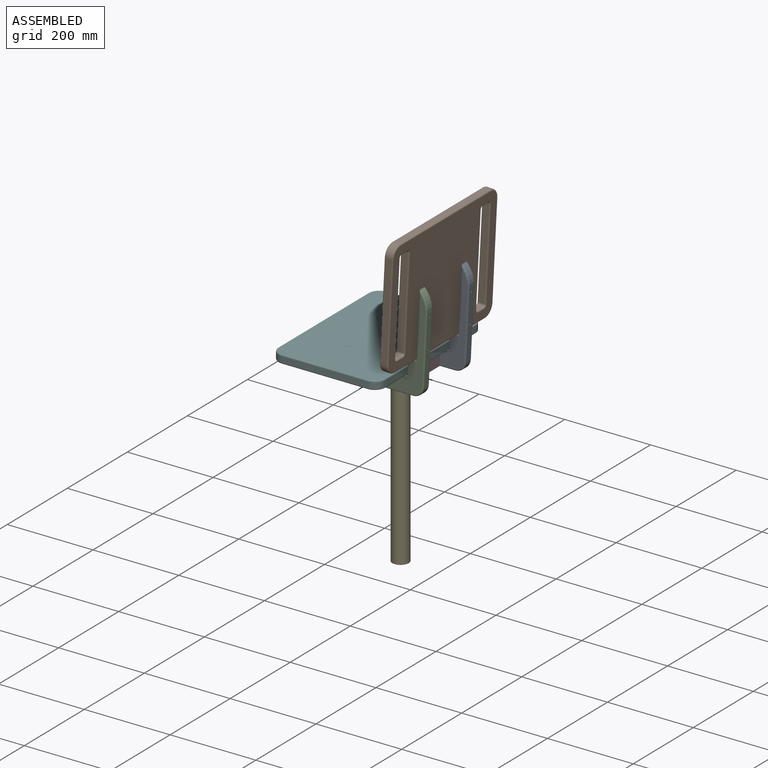
[diagram: assembled view]
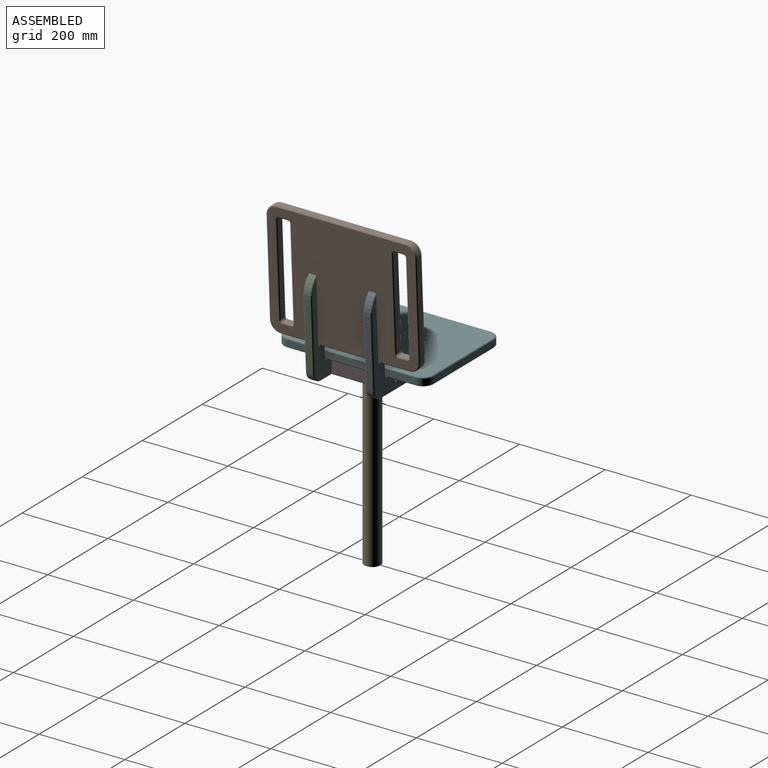
[diagram: assembled view, second angle]
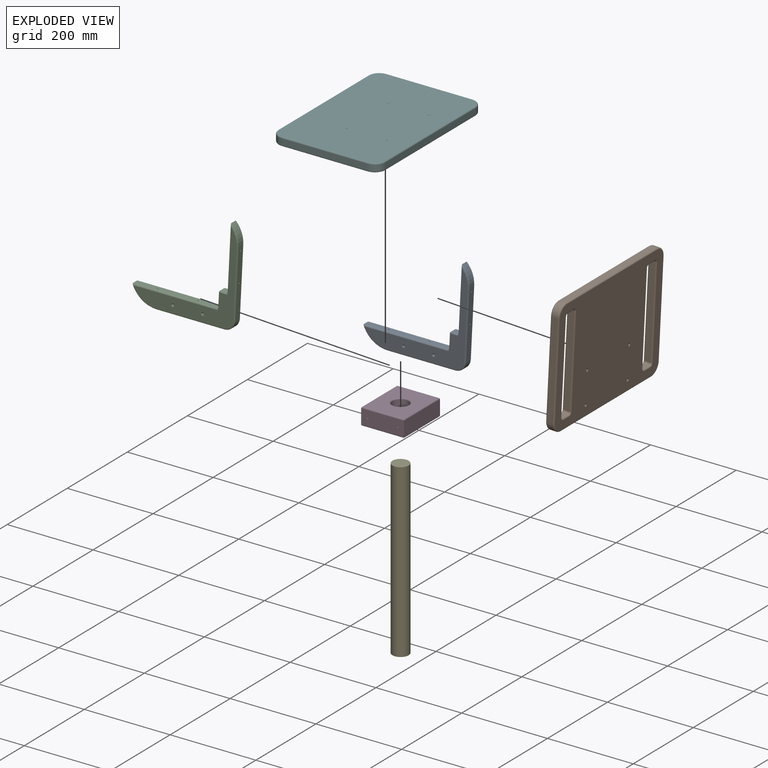
[diagram: exploded view]
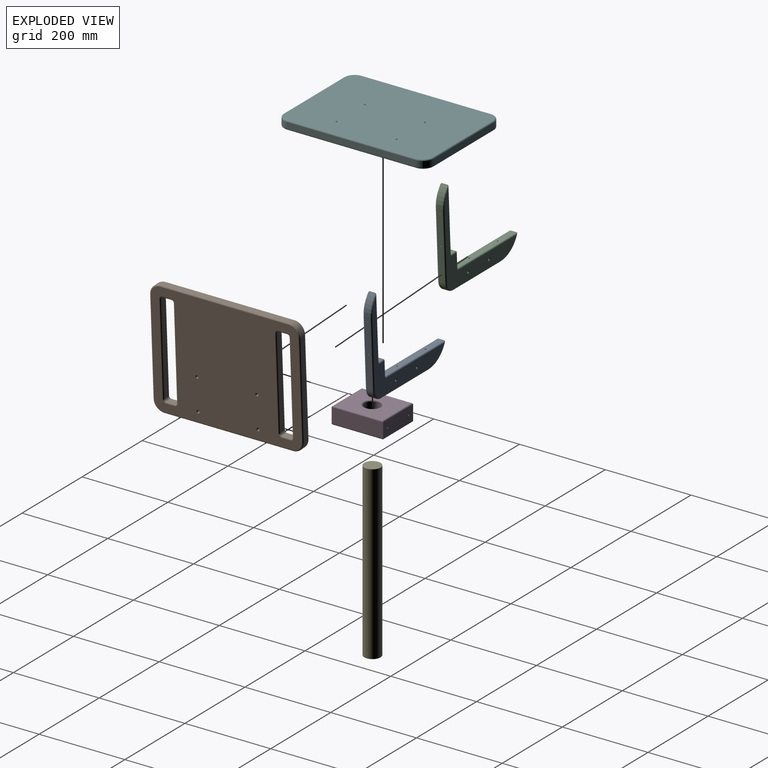
[diagram: exploded view, second angle]
ASSEMBLY  parts=6 mates=5
PART A: 48 faces, bbox 256.9x20x236.1 mm
  f0: cylinder r=60mm len=56.57mm, axis (0,1,0), area 1026.9mm2, adj f1,f11,f28,f42,f47
  f1: plane 157.69x14mm, normal (0,0,-1), area 2200.6mm2, adj f0,f2,f26,f40,f46
  f2: cylinder r=25mm len=24.97mm, axis (0,1,0), area 532.1mm2, adj f1,f3,f24,f38
  f3: plane 158.22x14mm, normal (1,0,-0.05), area 2203.8mm2, adj f2,f4,f22,f36,f44,f45
  f4: cylinder r=60mm len=45.67mm, axis (0,1,0), area 706.5mm2, adj f3,f5,f20,f34
  f5: plane 146.81x14mm, normal (-1,0,0.05), area 2043.9mm2, adj f4,f6,f18,f32,f44,f45
  f6: cylinder r=3mm len=14mm, axis (0,1,0), area 66mm2, adj f5,f7,f17,f31
  f7: plane 14x13.98mm, normal (0.05,0,1), area 196mm2, adj f6,f8,f19,f33
  f8: cylinder r=3mm len=14mm, axis (0,1,0), area 66mm2, adj f7,f9,f21,f35
  f9: plane 32.99x14mm, normal (-1,0,0.05), area 462.4mm2, adj f8,f10,f23,f37
  f10: cylinder r=3mm len=14mm, axis (0,1,0), area 63.9mm2, adj f9,f11,f25,f39
  f11: plane 197.15x14mm, normal (0,0,1), area 2745.9mm2, adj f0,f10,f27,f41,f46,f47
  f12: cylinder r=1.5mm len=14mm, axis (0,1,0), area 131.9mm2, adj f16,f30
  f13: cylinder r=1.5mm len=14mm, axis (0,1,0), area 131.9mm2, adj f29,f43
  f14: plane 239.88x217.19mm, normal (0,-1,0), area 10336.9mm2, adj f30,f31,f32,f33,f34,f36,f37,f38
  f15: plane 239.88x217.19mm, normal (0,1,0), area 10336.9mm2, adj f16,f17,f18,f19,f20,f22,f23,f24
  f16: torus R=4.5mm, axis (0,-1,0), area 76.7mm2, adj f12,f15
  f17: torus R=6mm, axis (0,-1,0), area 30.3mm2, adj f6,f15,f18,f19
  f18: cylinder r=3mm len=146.96mm, axis (-0.05,0,-1), area 680.6mm2, adj f5,f15,f17,f20
  f19: cylinder r=3mm len=14.13mm, axis (-1,0,0.05), area 66mm2, adj f7,f15,f17,f21
  f20: torus R=57mm, axis (0,-1,0), area 221.6mm2, adj f4,f15,f18,f22
  f21: sphere r=3mm, area 14.1mm2, adj f8,f19,f23
  f22: cylinder r=3mm len=158.37mm, axis (0.05,0,1), area 746.6mm2, adj f3,f15,f20,f24
  f23: cylinder r=3mm len=33.14mm, axis (-0.05,0,-1), area 155.7mm2, adj f9,f15,f21,f25
  f24: torus R=22mm, axis (0,-1,0), area 171.3mm2, adj f2,f15,f22,f26
  f25: torus R=6mm, axis (0,-1,0), area 29.3mm2, adj f10,f15,f23,f27
  f26: cylinder r=3mm len=157.69mm, axis (1,0,0), area 743.1mm2, adj f1,f15,f24,f28
  f27: cylinder r=3mm len=197.15mm, axis (-1,0,0), area 921.6mm2, adj f11,f15,f25,f28
  f28: torus R=57mm, axis (0,-1,0), area 334.4mm2, adj f0,f15,f26,f27
  f29: torus R=4.5mm, axis (0,-1,0), area 76.7mm2, adj f13,f15
  f30: torus R=4.5mm, axis (0,-1,0), area 76.7mm2, adj f12,f14
  f31: torus R=6mm, axis (0,-1,0), area 30.3mm2, adj f6,f14,f32,f33
  f32: cylinder r=3mm len=146.96mm, axis (0.05,0,1), area 680.6mm2, adj f5,f14,f31,f34
  f33: cylinder r=3mm len=14.13mm, axis (1,0,-0.05), area 66mm2, adj f7,f14,f31,f35
  f34: torus R=57mm, axis (0,-1,0), area 221.6mm2, adj f4,f14,f32,f36
  f35: sphere r=3mm, area 14.1mm2, adj f8,f33,f37
  f36: cylinder r=3mm len=158.37mm, axis (-0.05,0,-1), area 746.6mm2, adj f3,f14,f34,f38
  f37: cylinder r=3mm len=33.14mm, axis (0.05,0,1), area 155.7mm2, adj f9,f14,f35,f39
  f38: torus R=22mm, axis (0,-1,0), area 171.3mm2, adj f2,f14,f36,f40
  f39: torus R=6mm, axis (0,-1,0), area 29.3mm2, adj f10,f14,f37,f41
  f40: cylinder r=3mm len=157.69mm, axis (-1,0,0), area 743.1mm2, adj f1,f14,f38,f42
  f41: cylinder r=3mm len=197.15mm, axis (1,0,0), area 921.6mm2, adj f11,f14,f39,f42
  f42: torus R=57mm, axis (0,-1,0), area 334.4mm2, adj f0,f14,f40,f41
  f43: torus R=4.5mm, axis (0,-1,0), area 76.7mm2, adj f13,f14
  f44: cylinder r=1.5mm len=20.13mm, axis (-1,0,0.05), area 188.5mm2, adj f3,f5
  f45: cylinder r=1.5mm len=20.13mm, axis (-1,0,0.05), area 188.5mm2, adj f3,f5
  f46: cylinder r=1.5mm len=40mm, axis (0,0,1), area 377mm2, adj f1,f11
  f47: cylinder r=1.5mm len=39.98mm, axis (0,0,1), area 376.2mm2, adj f0,f11
PART B: 86 faces, bbox 354.1x20x279.1 mm
  f0: cylinder r=5mm len=14mm, axis (0,1,0), area 110mm2, adj f1,f21,f38,f66
  f1: plane 20x14mm, normal (0,0,1), area 280mm2, adj f0,f2,f36,f64
  f2: cylinder r=5mm len=14mm, axis (0,1,0), area 110mm2, adj f1,f3,f34,f62
  f3: plane 215x14mm, normal (1,0,0), area 3010mm2, adj f2,f4,f32,f60
  f4: cylinder r=5mm len=14mm, axis (0,1,0), area 110mm2, adj f3,f5,f33,f61
  f5: plane 20x14mm, normal (0,0,-1), area 280mm2, adj f4,f6,f35,f63
  f6: cylinder r=5mm len=14mm, axis (0,1,0), area 110mm2, adj f5,f21,f37,f65
  f7: plane 20x14mm, normal (0,0,1), area 280mm2, adj f8,f22,f45,f73
  f8: cylinder r=5mm len=14mm, axis (0,1,0), area 110mm2, adj f7,f9,f43,f71
  f9: plane 215x14mm, normal (1,0,0), area 3010mm2, adj f8,f10,f41,f69
  f10: cylinder r=5mm len=14mm, axis (0,1,0), area 110mm2, adj f9,f11,f40,f68
  f11: plane 20x14mm, normal (0,0,-1), area 280mm2, adj f10,f12,f42,f70
  f12: cylinder r=5mm len=14mm, axis (0,1,0), area 110mm2, adj f11,f13,f44,f72
  f13: plane 215x14mm, normal (-1,0,0), area 3010mm2, adj f12,f22,f46,f74
  f14: plane 300x14mm, normal (0,0,-1), area 4200mm2, adj f15,f24,f55,f83
  f15: cylinder r=25mm len=25mm, axis (0,1,0), area 549.8mm2, adj f14,f16,f53,f81
  f16: plane 225x14mm, normal (1,0,0), area 3150mm2, adj f15,f17,f51,f79
  f17: cylinder r=25mm len=25mm, axis (0,1,0), area 549.8mm2, adj f16,f18,f49,f77
  f18: plane 300x14mm, normal (0,0,1), area 4200mm2, adj f17,f19,f50,f78
  f19: cylinder r=25mm len=25mm, axis (0,1,0), area 549.8mm2, adj f18,f20,f52,f80
  f20: plane 225x14mm, normal (-1,0,0), area 3150mm2, adj f19,f24,f54,f82
  f21: plane 215x14mm, normal (-1,0,0), area 3010mm2, adj f0,f6,f39,f67
  f22: cylinder r=5mm len=14mm, axis (0,1,0), area 110mm2, adj f7,f13,f47,f75
  f23: cylinder r=1.5mm len=14mm, axis (0,1,0), area 131.9mm2, adj f48,f76
  f24: cylinder r=25mm len=25mm, axis (0,1,0), area 549.8mm2, adj f14,f20,f56,f84
  f25: cylinder r=1.5mm len=14mm, axis (0,1,0), area 131.9mm2, adj f31,f59
  f26: cylinder r=1.5mm len=14mm, axis (0,1,0), area 131.9mm2, adj f30,f58
  f27: cylinder r=1.5mm len=14mm, axis (0,1,0), area 131.9mm2, adj f57,f85
  f28: plane 344x269mm, normal (0,-1,0), area 75343.9mm2, adj f58,f59,f60,f61,f62,f63,f64,f65
  f29: plane 344x269mm, normal (0,1,0), area 75343.9mm2, adj f30,f31,f32,f33,f34,f35,f36,f37
  f30: torus R=4.5mm, axis (0,-1,0), area 76.7mm2, adj f26,f29
  f31: torus R=4.5mm, axis (0,-1,0), area 76.7mm2, adj f25,f29
  f32: cylinder r=3mm len=215mm, axis (0,0,1), area 1013.2mm2, adj f3,f29,f33,f34
  f33: torus R=8mm, axis (0,-1,0), area 45.1mm2, adj f4,f29,f32,f35
  f34: torus R=8mm, axis (0,-1,0), area 45.1mm2, adj f2,f29,f32,f36
  f35: cylinder r=3mm len=20mm, axis (1,0,0), area 94.2mm2, adj f5,f29,f33,f37
  f36: cylinder r=3mm len=20mm, axis (-1,0,0), area 94.2mm2, adj f1,f29,f34,f38
  f37: torus R=8mm, axis (0,-1,0), area 45.1mm2, adj f6,f29,f35,f39
  f38: torus R=8mm, axis (0,-1,0), area 45.1mm2, adj f0,f29,f36,f39
  f39: cylinder r=3mm len=215mm, axis (0,0,-1), area 1013.2mm2, adj f21,f29,f37,f38
  f40: torus R=8mm, axis (0,-1,0), area 45.1mm2, adj f10,f29,f41,f42
  f41: cylinder r=3mm len=215mm, axis (0,0,1), area 1013.2mm2, adj f9,f29,f40,f43
  f42: cylinder r=3mm len=20mm, axis (1,0,0), area 94.2mm2, adj f11,f29,f40,f44
  f43: torus R=8mm, axis (0,-1,0), area 45.1mm2, adj f8,f29,f41,f45
  f44: torus R=8mm, axis (0,-1,0), area 45.1mm2, adj f12,f29,f42,f46
  f45: cylinder r=3mm len=20mm, axis (-1,0,0), area 94.2mm2, adj f7,f29,f43,f47
  f46: cylinder r=3mm len=215mm, axis (0,0,-1), area 1013.2mm2, adj f13,f29,f44,f47
  f47: torus R=8mm, axis (0,-1,0), area 45.1mm2, adj f22,f29,f45,f46
  f48: torus R=4.5mm, axis (0,-1,0), area 76.7mm2, adj f23,f29
  f49: torus R=22mm, axis (0,-1,0), area 177mm2, adj f17,f29,f50,f51
  f50: cylinder r=3mm len=300mm, axis (-1,0,0), area 1413.7mm2, adj f18,f29,f49,f52
  f51: cylinder r=3mm len=225mm, axis (0,0,1), area 1060.3mm2, adj f16,f29,f49,f53
  f52: torus R=22mm, axis (0,-1,0), area 177mm2, adj f19,f29,f50,f54
  f53: torus R=22mm, axis (0,-1,0), area 177mm2, adj f15,f29,f51,f55
  f54: cylinder r=3mm len=225mm, axis (0,0,-1), area 1060.3mm2, adj f20,f29,f52,f56
  f55: cylinder r=3mm len=300mm, axis (1,0,0), area 1413.7mm2, adj f14,f29,f53,f56
  f56: torus R=22mm, axis (0,-1,0), area 177mm2, adj f24,f29,f54,f55
  f57: torus R=4.5mm, axis (0,-1,0), area 76.7mm2, adj f27,f29
  f58: torus R=4.5mm, axis (0,-1,0), area 76.7mm2, adj f26,f28
  f59: torus R=4.5mm, axis (0,-1,0), area 76.7mm2, adj f25,f28
  f60: cylinder r=3mm len=215mm, axis (0,0,-1), area 1013.2mm2, adj f3,f28,f61,f62
  f61: torus R=8mm, axis (0,-1,0), area 45.1mm2, adj f4,f28,f60,f63
  f62: torus R=8mm, axis (0,-1,0), area 45.1mm2, adj f2,f28,f60,f64
  f63: cylinder r=3mm len=20mm, axis (-1,0,0), area 94.2mm2, adj f5,f28,f61,f65
  f64: cylinder r=3mm len=20mm, axis (1,0,0), area 94.2mm2, adj f1,f28,f62,f66
  f65: torus R=8mm, axis (0,-1,0), area 45.1mm2, adj f6,f28,f63,f67
  f66: torus R=8mm, axis (0,-1,0), area 45.1mm2, adj f0,f28,f64,f67
  f67: cylinder r=3mm len=215mm, axis (0,0,1), area 1013.2mm2, adj f21,f28,f65,f66
  f68: torus R=8mm, axis (0,-1,0), area 45.1mm2, adj f10,f28,f69,f70
  f69: cylinder r=3mm len=215mm, axis (0,0,-1), area 1013.2mm2, adj f9,f28,f68,f71
  f70: cylinder r=3mm len=20mm, axis (-1,0,0), area 94.2mm2, adj f11,f28,f68,f72
  f71: torus R=8mm, axis (0,-1,0), area 45.1mm2, adj f8,f28,f69,f73
  f72: torus R=8mm, axis (0,-1,0), area 45.1mm2, adj f12,f28,f70,f74
  f73: cylinder r=3mm len=20mm, axis (1,0,0), area 94.2mm2, adj f7,f28,f71,f75
  f74: cylinder r=3mm len=215mm, axis (0,0,1), area 1013.2mm2, adj f13,f28,f72,f75
  f75: torus R=8mm, axis (0,-1,0), area 45.1mm2, adj f22,f28,f73,f74
  f76: torus R=4.5mm, axis (0,-1,0), area 76.7mm2, adj f23,f28
  f77: torus R=22mm, axis (0,-1,0), area 177mm2, adj f17,f28,f78,f79
  f78: cylinder r=3mm len=300mm, axis (1,0,0), area 1413.7mm2, adj f18,f28,f77,f80
  f79: cylinder r=3mm len=225mm, axis (0,0,-1), area 1060.3mm2, adj f16,f28,f77,f81
  f80: torus R=22mm, axis (0,-1,0), area 177mm2, adj f19,f28,f78,f82
  f81: torus R=22mm, axis (0,-1,0), area 177mm2, adj f15,f28,f79,f83
  f82: cylinder r=3mm len=225mm, axis (0,0,1), area 1060.3mm2, adj f20,f28,f80,f84
  f83: cylinder r=3mm len=300mm, axis (-1,0,0), area 1413.7mm2, adj f14,f28,f81,f84
  f84: torus R=22mm, axis (0,-1,0), area 177mm2, adj f24,f28,f82,f83
  f85: torus R=4.5mm, axis (0,-1,0), area 76.7mm2, adj f27,f28
PART C: same geometry as A
PART D: 25 faces, bbox 120x100x40 mm
  f0: plane 100x34mm, normal (-1,0,0), area 3385.9mm2, adj f1,f4,f8,f13,f17,f19
  f1: plane 120x34mm, normal (0,-1,0), area 4080mm2, adj f0,f2,f10,f15
  f2: plane 100x34mm, normal (1,0,0), area 3385.9mm2, adj f1,f4,f11,f16,f21,f23
  f3: cylinder r=19mm len=38mm, axis (0,0,-1), area 4058.9mm2, adj f7,f12
  f4: plane 120x34mm, normal (0,1,0), area 4080mm2, adj f0,f2,f9,f14
  f5: plane 114x94mm, normal (0,0,1), area 9195.5mm2, adj f12,f13,f14,f15,f16
  f6: plane 114x94mm, normal (0,0,-1), area 9195.5mm2, adj f7,f8,f9,f10,f11
  f7: torus R=22mm, axis (0,0,1), area 594.8mm2, adj f3,f6
  f8: cylinder r=3mm len=100mm, axis (0,-1,0), area 461mm2, adj f0,f6,f9,f10
  f9: cylinder r=3mm len=120mm, axis (-1,0,0), area 555.2mm2, adj f4,f6,f8,f11
  f10: cylinder r=3mm len=120mm, axis (1,0,0), area 555.2mm2, adj f1,f6,f8,f11
  f11: cylinder r=3mm len=100mm, axis (0,1,0), area 461mm2, adj f2,f6,f9,f10
  f12: torus R=22mm, axis (0,0,1), area 594.8mm2, adj f3,f5
  f13: cylinder r=3mm len=100mm, axis (0,1,0), area 461mm2, adj f0,f5,f14,f15
  f14: cylinder r=3mm len=120mm, axis (1,0,0), area 555.2mm2, adj f4,f5,f13,f16
  f15: cylinder r=3mm len=120mm, axis (-1,0,0), area 555.2mm2, adj f1,f5,f13,f16
  f16: cylinder r=3mm len=100mm, axis (0,-1,0), area 461mm2, adj f2,f5,f14,f15
  f17: cylinder r=1.5mm len=40mm, axis (-1,0,0), area 377mm2, adj f0,f18
  f18: cone r=0mm half-angle=59deg, axis (-1,0,0), area 8.2mm2, adj f17
  f19: cylinder r=1.5mm len=40mm, axis (-1,0,0), area 377mm2, adj f0,f20
  f20: cone r=0mm half-angle=59deg, axis (-1,0,0), area 8.2mm2, adj f19
  f21: cylinder r=1.5mm len=40mm, axis (1,0,0), area 377mm2, adj f2,f22
  f22: cone r=0mm half-angle=59deg, axis (1,0,0), area 8.2mm2, adj f21
  f23: cylinder r=1.5mm len=40mm, axis (1,0,0), area 377mm2, adj f2,f24
  f24: cone r=0mm half-angle=59deg, axis (1,0,0), area 8.2mm2, adj f23
PART E: 3 faces, bbox 38x400x38 mm
  f0: cylinder r=19mm len=400mm, axis (0,1,0), area 47752.2mm2, adj f1,f2
  f1: plane 38x38mm, normal (0,-1,0), area 1134.1mm2, adj f0
  f2: plane 38x38mm, normal (0,1,0), area 1134.1mm2, adj f0
PART F: 38 faces, bbox 354.1x20x254.1 mm
  f0: plane 300x14mm, normal (0,0,1), area 4200mm2, adj f1,f7,f22,f34
  f1: cylinder r=25mm len=25mm, axis (0,1,0), area 549.8mm2, adj f0,f2,f20,f32
  f2: plane 200x14mm, normal (-1,0,0), area 2800mm2, adj f1,f3,f18,f30
  f3: cylinder r=25mm len=25mm, axis (0,1,0), area 549.8mm2, adj f2,f4,f17,f29
  f4: plane 300x14mm, normal (0,0,-1), area 4200mm2, adj f3,f5,f19,f31
  f5: cylinder r=25mm len=25mm, axis (0,1,0), area 549.8mm2, adj f4,f6,f21,f33
  f6: plane 200x14mm, normal (1,0,0), area 2800mm2, adj f5,f7,f23,f35
  f7: cylinder r=25mm len=25mm, axis (0,1,0), area 549.8mm2, adj f0,f6,f24,f36
  f8: cylinder r=1.5mm len=14mm, axis (0,1,0), area 131.9mm2, adj f16,f28
  f9: cylinder r=1.5mm len=14mm, axis (0,1,0), area 131.9mm2, adj f15,f27
  f10: cylinder r=1.5mm len=14mm, axis (0,1,0), area 131.9mm2, adj f14,f26
  f11: cylinder r=1.5mm len=14mm, axis (0,1,0), area 131.9mm2, adj f25,f37
  f12: plane 344x244mm, normal (0,-1,0), area 83266.1mm2, adj f26,f27,f28,f29,f30,f31,f32,f33
  f13: plane 344x244mm, normal (0,1,0), area 83266.1mm2, adj f14,f15,f16,f17,f18,f19,f20,f21
  f14: torus R=4.5mm, axis (0,-1,0), area 76.7mm2, adj f10,f13
  f15: torus R=4.5mm, axis (0,-1,0), area 76.7mm2, adj f9,f13
  f16: torus R=4.5mm, axis (0,-1,0), area 76.7mm2, adj f8,f13
  f17: torus R=22mm, axis (0,-1,0), area 177mm2, adj f3,f13,f18,f19
  f18: cylinder r=3mm len=200mm, axis (0,0,-1), area 942.5mm2, adj f2,f13,f17,f20
  f19: cylinder r=3mm len=300mm, axis (1,0,0), area 1413.7mm2, adj f4,f13,f17,f21
  f20: torus R=22mm, axis (0,-1,0), area 177mm2, adj f1,f13,f18,f22
  f21: torus R=22mm, axis (0,-1,0), area 177mm2, adj f5,f13,f19,f23
  f22: cylinder r=3mm len=300mm, axis (-1,0,0), area 1413.7mm2, adj f0,f13,f20,f24
  f23: cylinder r=3mm len=200mm, axis (0,0,1), area 942.5mm2, adj f6,f13,f21,f24
  f24: torus R=22mm, axis (0,-1,0), area 177mm2, adj f7,f13,f22,f23
  f25: torus R=4.5mm, axis (0,-1,0), area 76.7mm2, adj f11,f13
  f26: torus R=4.5mm, axis (0,-1,0), area 76.7mm2, adj f10,f12
  f27: torus R=4.5mm, axis (0,-1,0), area 76.7mm2, adj f9,f12
  f28: torus R=4.5mm, axis (0,-1,0), area 76.7mm2, adj f8,f12
  f29: torus R=22mm, axis (0,-1,0), area 177mm2, adj f3,f12,f30,f31
  f30: cylinder r=3mm len=200mm, axis (0,0,1), area 942.5mm2, adj f2,f12,f29,f32
  f31: cylinder r=3mm len=300mm, axis (-1,0,0), area 1413.7mm2, adj f4,f12,f29,f33
  f32: torus R=22mm, axis (0,-1,0), area 177mm2, adj f1,f12,f30,f34
  f33: torus R=22mm, axis (0,-1,0), area 177mm2, adj f5,f12,f31,f35
  f34: cylinder r=3mm len=300mm, axis (1,0,0), area 1413.7mm2, adj f0,f12,f32,f36
  f35: cylinder r=3mm len=200mm, axis (0,0,-1), area 942.5mm2, adj f6,f12,f33,f36
  f36: torus R=22mm, axis (0,-1,0), area 177mm2, adj f7,f12,f34,f35
  f37: torus R=4.5mm, axis (0,-1,0), area 76.7mm2, adj f11,f12
PLACE A t=(-165.38,2.52,109.05)mm
PLACE B rot(axis=(0.03,0.03,1),90deg) t=(-148.35,-67.48,247.71)mm
PLACE C t=(-165.38,-137.48,109.05)mm
PLACE D rot(axis=(0,0,1),90deg) t=(-210.14,-72.81,88.78)mm
PLACE E rot(axis=(-0.58,-0.58,0.58),120deg) t=(-194.65,-16.23,-131.22)mm
PLACE F rot(axis=(0.58,0.58,0.58),120deg) t=(-368.7,-67.48,118.78)mm
MATE fastened E.f0 <-> D.f3  axis (0,0,1) through (-235.38,-67.48,68.78)mm
MATE fastened B.f23 <-> C.f44  axis (1,0,-0.05) through (-142.18,-137.48,171.57)mm
MATE fastened F.f11 <-> C.f46  axis (0,0,-1) through (-217.8,-137.48,108.78)mm
MATE fastened D.f23 <-> C.f13  axis (0,-1,0) through (-200.38,-127.48,88.78)mm
MATE fastened B.f27 <-> A.f44  axis (1,0,-0.05) through (-142.18,2.52,171.57)mm
